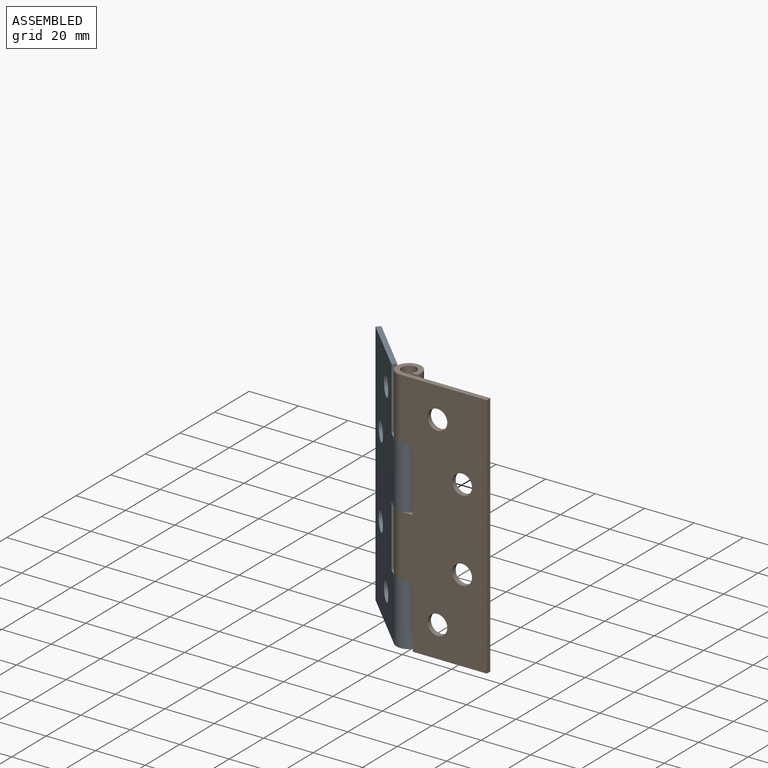
[diagram: assembled view]
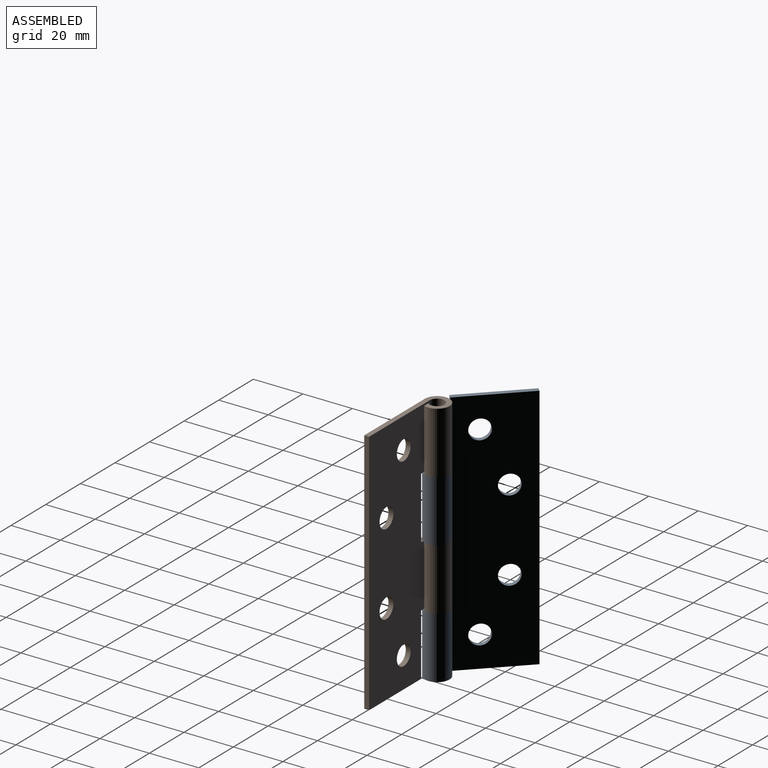
[diagram: assembled view, second angle]
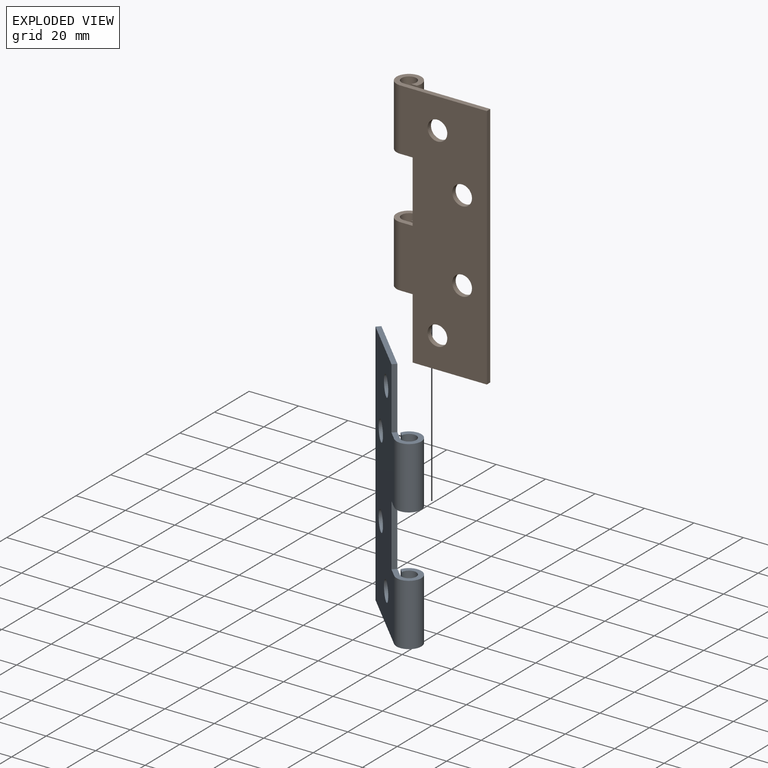
[diagram: exploded view]
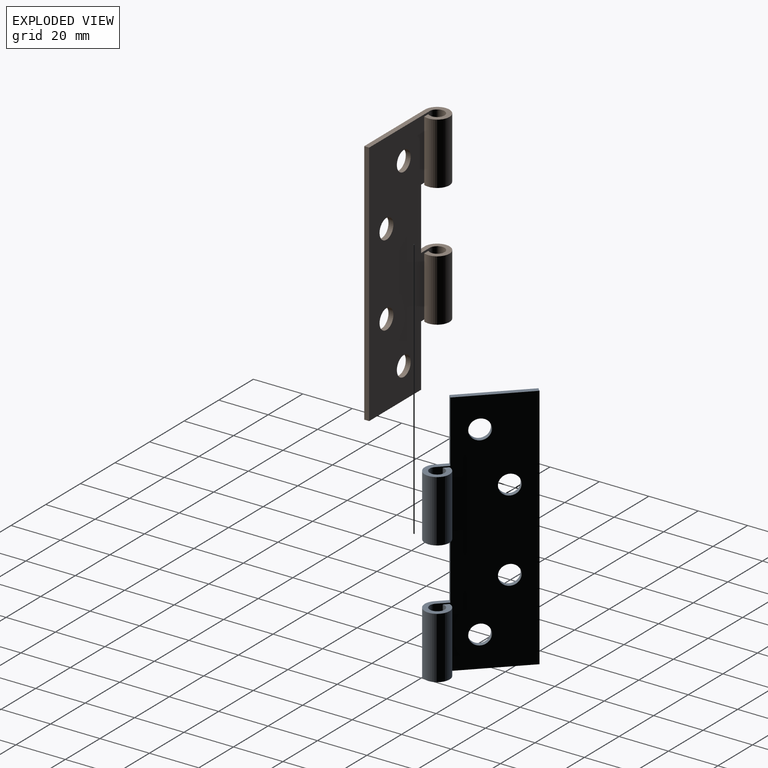
[diagram: exploded view, second angle]
ASSEMBLY  parts=2 mates=2
PART A: 20 faces, bbox 40x10x100 mm
  f0: plane 100x35mm, normal (0,1,0), area 3048.9mm2, adj f4,f5,f8,f9,f10,f11,f12,f13
  f1: plane 100x35mm, normal (0,-1,0), area 3048.9mm2, adj f2,f5,f6,f9,f10,f11,f12,f13
  f2: cylinder r=5mm len=25mm, axis (0,0,-1), area 640.5mm2, adj f1,f3,f15,f18
  f3: plane 25x2.35mm, normal (0,-1,0), area 58.7mm2, adj f2,f4,f15,f18
  f4: cylinder r=3mm len=25mm, axis (0,0,-1), area 408.2mm2, adj f0,f3,f15,f18
  f5: plane 100x2mm, normal (-1,0,0), area 200mm2, adj f0,f1,f9,f10
  f6: cylinder r=5mm len=25mm, axis (0,0,-1), area 640.5mm2, adj f1,f7,f10,f19
  f7: plane 25x2.35mm, normal (0,-1,0), area 58.7mm2, adj f6,f8,f10,f19
  f8: cylinder r=3mm len=25mm, axis (0,0,-1), area 408.2mm2, adj f0,f7,f10,f19
  f9: plane 30x2mm, normal (0,0,1), area 60mm2, adj f0,f1,f5,f16
  f10: plane 40x10mm, normal (0,0,-1), area 111.9mm2, adj f0,f1,f5,f6,f7,f8
  f11: cylinder r=4mm len=8mm, axis (0,1,0), area 50.3mm2, adj f0,f1
  f12: cylinder r=4mm len=8mm, axis (0,1,0), area 50.3mm2, adj f0,f1
  f13: cylinder r=4mm len=8mm, axis (0,1,0), area 50.3mm2, adj f0,f1
  f14: cylinder r=4mm len=8mm, axis (0,1,0), area 50.3mm2, adj f0,f1
  f15: plane 10x10mm, normal (0,0,1), area 51.9mm2, adj f0,f1,f2,f3,f4,f16
  f16: plane 25x2mm, normal (1,0,0), area 50mm2, adj f0,f1,f9,f15
  f17: plane 25x2mm, normal (1,0,0), area 50mm2, adj f0,f1,f18,f19
  f18: plane 10x10mm, normal (0,0,-1), area 51.9mm2, adj f0,f1,f2,f3,f4,f17
  f19: plane 10x10mm, normal (0,0,1), area 51.9mm2, adj f0,f1,f6,f7,f8,f17
PART B: same geometry as A
PLACE A rot(axis=(0,0,-1),44.8deg) t=(-41.17,-14.4,36.5)mm
PLACE B rot(axis=(0,1,0),180deg) t=(-41.17,-14.4,136.5)mm fixed
MATE planar B.f15 <-> A.f19  axis (0,0,-1) through (-41.01,-14.62,61.5)mm
MATE cylindrical A.f4 <-> B.f4  axis (0,0,-1) through (-41.17,-14.4,86.5)mm
